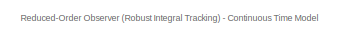
[diagram: root canvas - part 1/3, top left region]
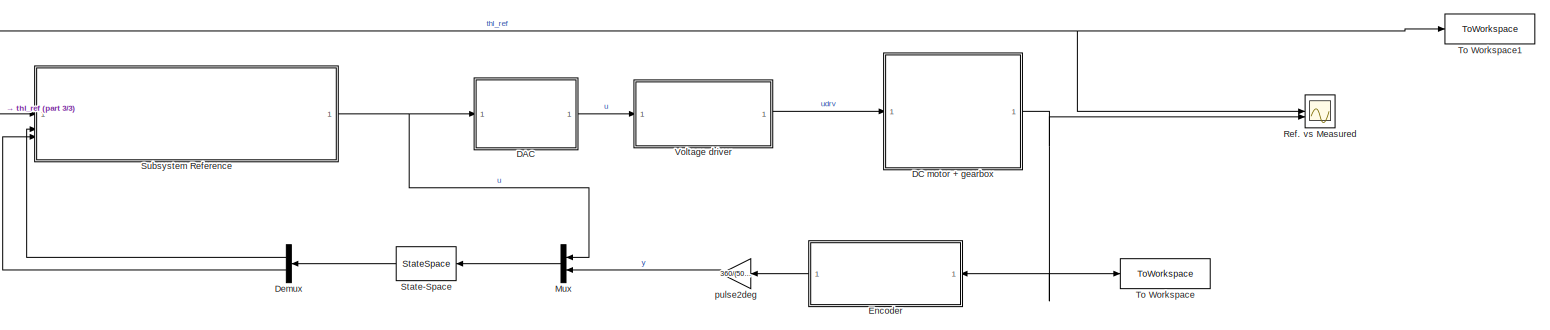
[diagram: root canvas - part 2/3, most of the canvas]
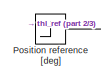
[diagram: root canvas - part 3/3, middle left region]
MODEL slx_bf1696462ff0
KIND model
CONFIG AbsTol = auto
CONFIG EnableMultiTasking = off
CONFIG FixedStep = auto
CONFIG MaxStep = auto
CONFIG MinStep = auto
CONFIG RelTol = 1e-3
CONFIG SampleTimeConstraint = Unconstrained
CONFIG SolverName = ode45
CONFIG StartTime = 0.0
CONFIG StopTime = 30
BLOCK [SubSystem] DAC
  ReferencedSubsystem = DAC
BLOCK [SubSystem] DC motor + gearbox
  ReferencedSubsystem = DC_motor_and_gearbox
BLOCK [Demux] Demux
  Outputs = 2
BLOCK [SubSystem] Encoder
  NameLocation = top
  ReferencedSubsystem = Encoder
BLOCK [Mux] Mux
  DisplayOption = bar
  Inputs = 2
BLOCK [Step] Position reference [deg]
  After = 120
  SampleTime = 0
  Time = 0
BLOCK [Scope] Ref. vs Measured
  Floating = off
  NumInputPorts = 2
  ScopeSpecificationString = Simulink.scopes.TimeScopeBlockCfg('CurrentConfiguration', extmgr.ConfigurationSet(extmgr.Configuration('Core','General UI',true),extmgr.Configuration('Core','Source UI',true),extmgr.Configuration('Sources','WiredSimulink',true),extmgr.Configuration('Visuals','Time Domain',true,'SerializedDisplays',{struct('MinYLimReal','34.75704','MaxYLimReal','55.15744','YLabelReal','','MinYLimMag','34.75704','Ma...<+1859ch>
BLOCK [StateSpace] State-Space
  A = A_o
  B = B_o
  C = C_o
  D = D_o
  InitialCondition = 0
BLOCK [SubSystem] Subsystem Reference
  ReferencedSubsystem = Ss_controller__robust_integral
BLOCK [ToWorkspace] To Workspace
  FixptAsFi = on
  MaxDataPoints = inf
  SampleTime = -1
  SaveFormat = Timeseries
  VariableName = pos_meas_ssm
BLOCK [ToWorkspace] To Workspace1
  FixptAsFi = on
  MaxDataPoints = inf
  SampleTime = -1
  SaveFormat = Timeseries
  VariableName = pos_ref_ssm
BLOCK [SubSystem] Voltage driver
  ReferencedSubsystem = Voltage_driver
BLOCK [Gain] pulse2deg
  Gain = 360/(500*4)
  NameLocation = top
ANNOTATION (root): Reduced-Order Observer (Robust Integral Tracking) - Continuous Time Model
LINE DAC:1 -> Voltage driver:1
NET DC motor + gearbox:1 -> Encoder:1, Ref. vs Measured:2, To Workspace:1
LINE Demux:1 -> Subsystem Reference:2
LINE Demux:2 -> Subsystem Reference:3
LINE Encoder:1 -> pulse2deg:1
LINE Mux:1 -> State-Space:1
NET Position reference [deg]:1 -> Ref. vs Measured:1, Subsystem Reference:1, To Workspace1:1
LINE State-Space:1 -> Demux:1
NET Subsystem Reference:1 -> DAC:1, Mux:1
LINE Voltage driver:1 -> DC motor + gearbox:1
LINE pulse2deg:1 -> Mux:2
note: NET lines group one-source signal fan-out (src -> all destinations, sorted); 1:1 wires keep LINE
